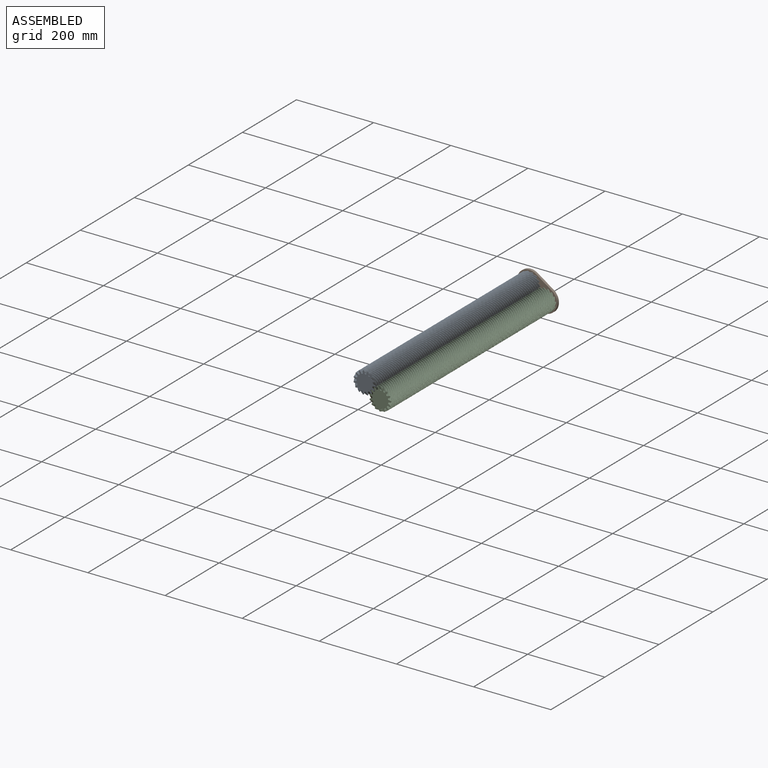
[diagram: assembled view]
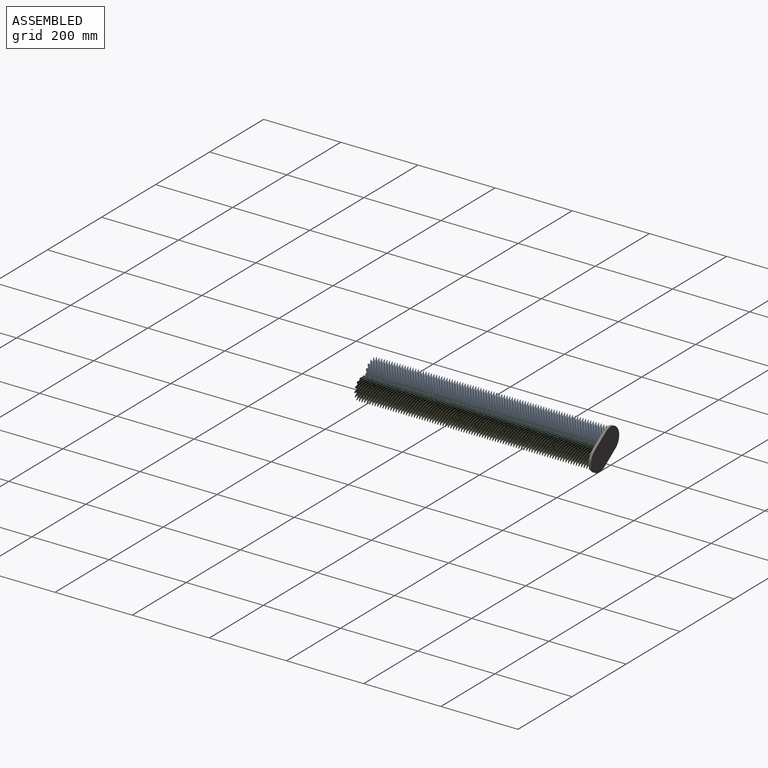
[diagram: assembled view, second angle]
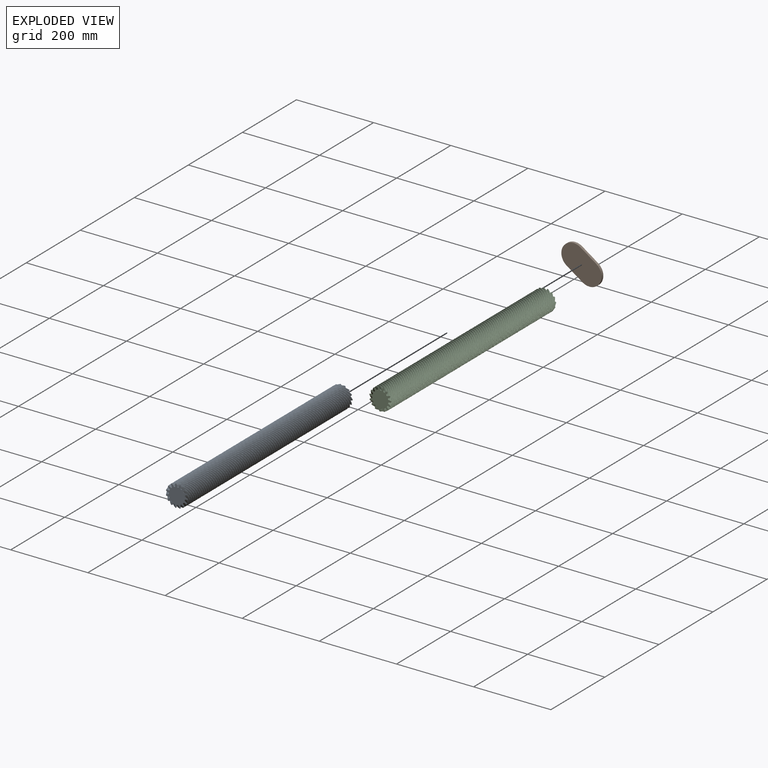
[diagram: exploded view]
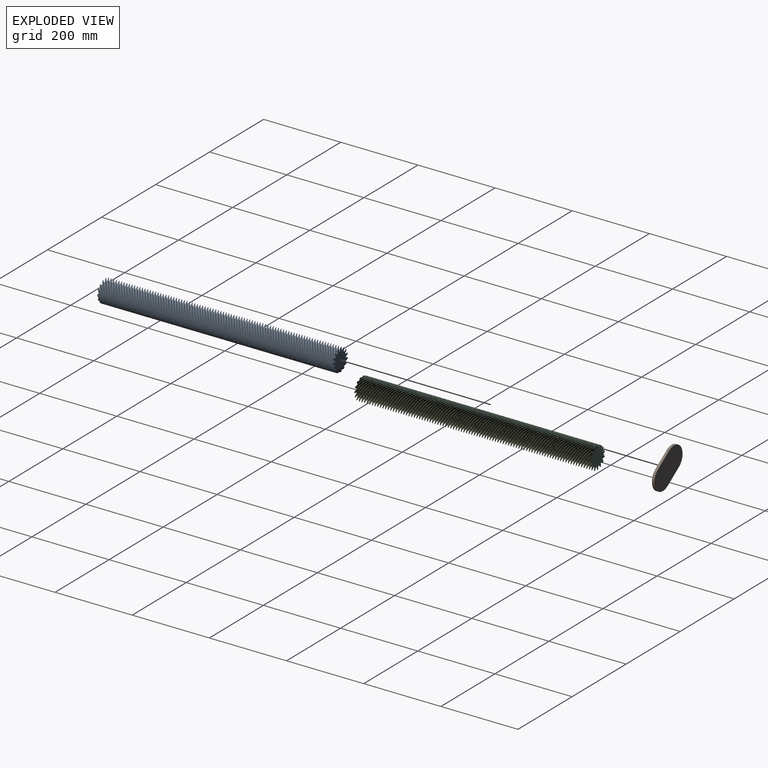
[diagram: exploded view, second angle]
ASSEMBLY  parts=3 mates=2
PART A: 137 faces, bbox 59.4x615x59.4 mm
  f0: bspline ~614.19x44.65mm, area 2408.2mm2, adj f2,f3,f5,f11
  f1: bspline ~614.16x44.67mm, area 2408.2mm2, adj f2,f3,f4,f12
  f2: plane 58.08x57.82mm, normal (0,-1,0), area 1895.9mm2, adj f0,f1,f4,f5,f6,f7,f8,f9
  f3: plane 58.08x57.82mm, normal (0,1,0), area 1895.9mm2, adj f0,f1,f4,f5,f6,f7,f8,f9
  f4: bspline ~609.6x49.19mm, area 1941.8mm2, adj f1,f2,f3,f10
  f5: bspline ~609.6x48.39mm, area 1941.8mm2, adj f0,f2,f3,f6
  f6: bspline ~609.6x54.69mm, area 3443.7mm2, adj f2,f3,f5,f7
  f7: bspline ~609.6x58.38mm, area 2160.4mm2, adj f2,f3,f6,f8
  f8: bspline ~609.6x58.65mm, area 1075.6mm2, adj f2,f3,f7,f9
  f9: bspline ~609.6x58.65mm, area 2160.4mm2, adj f2,f3,f8,f10
  f10: bspline ~609.6x55.24mm, area 3443.7mm2, adj f2,f3,f4,f9
  f11: bspline ~614.16x44.67mm, area 2408.2mm2, adj f0,f2,f3,f130
  f12: bspline ~614.19x44.67mm, area 2408.2mm2, adj f1,f2,f3,f15
  f13: bspline ~614.16x44.67mm, area 2408.2mm2, adj f2,f3,f14,f21
  f14: bspline ~609.6x49.13mm, area 1941.8mm2, adj f2,f3,f13,f20
  f15: bspline ~609.6x48.61mm, area 1941.8mm2, adj f2,f3,f12,f16
  f16: bspline ~609.6x54.88mm, area 3443.7mm2, adj f2,f3,f15,f17
  f17: bspline ~609.6x58.52mm, area 2160.4mm2, adj f2,f3,f16,f18
  f18: bspline ~609.6x58.69mm, area 1075.6mm2, adj f2,f3,f17,f19
  f19: bspline ~609.6x58.69mm, area 2160.4mm2, adj f2,f3,f18,f20
  f20: bspline ~609.6x55.23mm, area 3443.7mm2, adj f2,f3,f14,f19
  f21: bspline ~614.19x44.67mm, area 2408.2mm2, adj f2,f3,f13,f24
  f22: bspline ~614.16x44.67mm, area 2408.2mm2, adj f2,f3,f23,f30
  f23: bspline ~609.6x49.03mm, area 1941.8mm2, adj f2,f3,f22,f29
  f24: bspline ~609.6x48.8mm, area 1941.8mm2, adj f2,f3,f21,f25
  f25: bspline ~609.6x55.02mm, area 3443.7mm2, adj f2,f3,f24,f26
  f26: bspline ~609.6x58.62mm, area 2160.4mm2, adj f2,f3,f25,f27
  f27: bspline ~609.6x58.71mm, area 1075.6mm2, adj f2,f3,f26,f28
  f28: bspline ~609.6x58.7mm, area 2160.4mm2, adj f2,f3,f27,f29
  f29: bspline ~609.6x55.18mm, area 3443.7mm2, adj f2,f3,f23,f28
  f30: bspline ~614.19x44.67mm, area 2408.3mm2, adj f2,f3,f22,f33
  f31: bspline ~614.16x44.67mm, area 2408.2mm2, adj f2,f3,f32,f39
  f32: bspline ~609.6x48.9mm, area 1941.8mm2, adj f2,f3,f31,f38
  f33: bspline ~609.6x48.95mm, area 1941.8mm2, adj f2,f3,f30,f34
  f34: bspline ~609.6x55.13mm, area 3443.7mm2, adj f2,f3,f33,f35
  f35: bspline ~609.6x58.68mm, area 2160.4mm2, adj f2,f3,f34,f36
  f36: bspline ~609.6x58.71mm, area 1075.6mm2, adj f2,f3,f35,f37
  f37: bspline ~609.6x58.67mm, area 2160.4mm2, adj f2,f3,f36,f38
  f38: bspline ~609.6x55.1mm, area 3443.7mm2, adj f2,f3,f32,f37
  f39: bspline ~614.19x44.67mm, area 2408.2mm2, adj f2,f3,f31,f42
  f40: bspline ~614.16x44.67mm, area 2408.2mm2, adj f2,f3,f41,f48
  f41: bspline ~609.6x48.73mm, area 1941.8mm2, adj f2,f3,f40,f47
  f42: bspline ~609.6x49.07mm, area 1941.8mm2, adj f2,f3,f39,f43
  f43: bspline ~609.6x55.2mm, area 3443.7mm2, adj f2,f3,f42,f44
  f44: bspline ~609.6x58.7mm, area 2160.4mm2, adj f2,f3,f43,f45
  f45: bspline ~609.6x58.7mm, area 1075.6mm2, adj f2,f3,f44,f46
  f46: bspline ~609.6x58.59mm, area 2160.4mm2, adj f2,f3,f45,f47
  f47: bspline ~609.6x54.97mm, area 3443.7mm2, adj f2,f3,f41,f46
  f48: bspline ~614.19x44.67mm, area 2408.2mm2, adj f2,f3,f40,f51
  f49: bspline ~614.16x44.66mm, area 2408.2mm2, adj f2,f3,f50,f57
  f50: bspline ~609.6x48.53mm, area 1941.8mm2, adj f2,f3,f49,f56
  f51: bspline ~609.6x49.16mm, area 1941.8mm2, adj f2,f3,f48,f52
  f52: bspline ~609.6x55.24mm, area 3443.7mm2, adj f2,f3,f51,f53
  f53: bspline ~609.6x58.68mm, area 2160.4mm2, adj f2,f3,f52,f54
  f54: bspline ~609.6x58.68mm, area 1075.6mm2, adj f2,f3,f53,f55
  f55: bspline ~609.6x58.48mm, area 2160.4mm2, adj f2,f3,f54,f56
  f56: bspline ~609.6x54.81mm, area 3443.7mm2, adj f2,f3,f50,f55
  f57: bspline ~614.19x44.67mm, area 2408.3mm2, adj f2,f3,f49,f60
  f58: bspline ~614.16x44.65mm, area 2408.2mm2, adj f2,f3,f59,f66
  f59: bspline ~609.6x48.3mm, area 1941.8mm2, adj f2,f3,f58,f65
  f60: bspline ~609.6x49.21mm, area 1941.8mm2, adj f2,f3,f57,f61
  f61: bspline ~609.6x55.23mm, area 3443.7mm2, adj f2,f3,f60,f62
  f62: bspline ~609.6x58.62mm, area 2160.4mm2, adj f2,f3,f61,f63
  f63: bspline ~609.6x58.62mm, area 1075.6mm2, adj f2,f3,f62,f64
  f64: bspline ~609.6x58.32mm, area 2160.4mm2, adj f2,f3,f63,f65
  f65: bspline ~609.6x54.61mm, area 3443.7mm2, adj f2,f3,f59,f64
  f66: bspline ~614.19x44.67mm, area 2408.3mm2, adj f2,f3,f58,f69
  f67: bspline ~614.16x44.66mm, area 2408.2mm2, adj f2,f3,f68,f75
  f68: bspline ~609.6x48.49mm, area 1941.8mm2, adj f2,f3,f67,f74
  f69: bspline ~609.6x49.22mm, area 1941.8mm2, adj f2,f3,f66,f70
  f70: bspline ~609.6x55.19mm, area 3443.7mm2, adj f2,f3,f69,f71
  f71: bspline ~609.6x58.52mm, area 2160.4mm2, adj f2,f3,f70,f72
  f72: bspline ~609.6x58.52mm, area 1075.6mm2, adj f2,f3,f71,f73
  f73: bspline ~609.6x58.13mm, area 2160.4mm2, adj f2,f3,f72,f74
  f74: bspline ~609.6x54.38mm, area 3443.7mm2, adj f2,f3,f68,f73
  f75: bspline ~614.19x44.67mm, area 2408.3mm2, adj f2,f3,f67,f78
  f76: bspline ~614.16x44.67mm, area 2408.2mm2, adj f2,f3,f77,f84
  f77: bspline ~609.6x48.7mm, area 1941.8mm2, adj f2,f3,f76,f83
  f78: bspline ~609.6x49.21mm, area 1941.8mm2, adj f2,f3,f75,f79
  f79: bspline ~609.6x55.11mm, area 3443.7mm2, adj f2,f3,f78,f80
  f80: bspline ~609.6x58.38mm, area 2160.4mm2, adj f2,f3,f79,f81
  f81: bspline ~609.6x58.38mm, area 1075.6mm2, adj f2,f3,f80,f82
  f82: bspline ~609.6x57.89mm, area 2160.4mm2, adj f2,f3,f81,f83
  f83: bspline ~609.6x54.25mm, area 3443.7mm2, adj f2,f3,f77,f82
  f84: bspline ~614.19x44.67mm, area 2408.3mm2, adj f2,f3,f76,f87
  f85: bspline ~614.16x44.67mm, area 2408.2mm2, adj f2,f3,f86,f93
  f86: bspline ~609.6x48.87mm, area 1941.8mm2, adj f2,f3,f85,f92
  f87: bspline ~609.6x49.16mm, area 1941.8mm2, adj f2,f3,f84,f88
  f88: bspline ~609.6x54.99mm, area 3443.7mm2, adj f2,f3,f87,f89
  f89: bspline ~609.6x58.2mm, area 2160.4mm2, adj f2,f3,f88,f90
  f90: bspline ~609.6x58.2mm, area 1075.6mm2, adj f2,f3,f89,f91
  f91: bspline ~609.6x57.62mm, area 2160.4mm2, adj f2,f3,f90,f92
  f92: bspline ~609.6x54.5mm, area 3443.7mm2, adj f2,f3,f86,f91
  f93: bspline ~614.19x44.67mm, area 2408.3mm2, adj f2,f3,f85,f96
  f94: bspline ~614.16x44.67mm, area 2408.2mm2, adj f2,f3,f95,f102
  f95: bspline ~609.6x49.01mm, area 1941.8mm2, adj f2,f3,f94,f101
  f96: bspline ~609.6x49.08mm, area 1941.8mm2, adj f2,f3,f93,f97
  f97: bspline ~609.6x54.84mm, area 3443.7mm2, adj f2,f3,f96,f98
  f98: bspline ~609.6x57.97mm, area 2160.4mm2, adj f2,f3,f97,f99
  f99: bspline ~609.6x57.97mm, area 1075.6mm2, adj f2,f3,f98,f100
  f100: bspline ~609.6x57.82mm, area 2160.4mm2, adj f2,f3,f99,f101
  f101: bspline ~609.6x54.72mm, area 3443.7mm2, adj f2,f3,f95,f100
  f102: bspline ~614.19x44.67mm, area 2408.3mm2, adj f2,f3,f94,f105
  f103: bspline ~614.16x44.67mm, area 2408.2mm2, adj f2,f3,f104,f111
  f104: bspline ~609.6x49.11mm, area 1941.8mm2, adj f2,f3,f103,f110
  f105: bspline ~609.6x48.96mm, area 1941.8mm2, adj f2,f3,f102,f106
  f106: bspline ~609.6x54.64mm, area 3443.7mm2, adj f2,f3,f105,f107
  f107: bspline ~609.6x57.71mm, area 2160.4mm2, adj f2,f3,f106,f108
  f108: bspline ~609.6x58.06mm, area 1075.6mm2, adj f2,f3,f107,f109
  f109: bspline ~609.6x58.06mm, area 2160.4mm2, adj f2,f3,f108,f110
  f110: bspline ~609.6x54.9mm, area 3443.7mm2, adj f2,f3,f104,f109
  f111: bspline ~614.19x44.67mm, area 2408.3mm2, adj f2,f3,f103,f114
  f112: bspline ~614.16x44.67mm, area 2408.2mm2, adj f2,f3,f113,f120
  f113: bspline ~609.6x49.18mm, area 1941.8mm2, adj f2,f3,f112,f119
  f114: bspline ~609.6x48.81mm, area 1941.8mm2, adj f2,f3,f111,f115
  f115: bspline ~609.6x54.41mm, area 3443.7mm2, adj f2,f3,f114,f116
  f116: bspline ~609.6x57.73mm, area 2160.4mm2, adj f2,f3,f115,f117
  f117: bspline ~609.6x58.27mm, area 1075.6mm2, adj f2,f3,f116,f118
  f118: bspline ~609.6x58.27mm, area 2160.4mm2, adj f2,f3,f117,f119
  f119: bspline ~609.6x55.04mm, area 3443.7mm2, adj f2,f3,f113,f118
  f120: bspline ~614.19x44.67mm, area 2408.3mm2, adj f2,f3,f112,f123
  f121: bspline ~614.16x44.67mm, area 2408.2mm2, adj f2,f3,f122,f129
  f122: bspline ~609.6x49.22mm, area 1941.8mm2, adj f2,f3,f121,f128
  f123: bspline ~609.6x48.62mm, area 1941.8mm2, adj f2,f3,f120,f124
  f124: bspline ~609.6x54.21mm, area 3443.7mm2, adj f2,f3,f123,f125
  f125: bspline ~609.6x57.98mm, area 2160.4mm2, adj f2,f3,f124,f126
  f126: bspline ~609.6x58.44mm, area 1075.6mm2, adj f2,f3,f125,f127
  f127: bspline ~609.6x58.44mm, area 2160.4mm2, adj f2,f3,f126,f128
  f128: bspline ~609.6x55.14mm, area 3443.7mm2, adj f2,f3,f122,f127
  f129: bspline ~614.19x44.66mm, area 2408.2mm2, adj f2,f3,f121,f131
  f130: bspline ~609.6x49.22mm, area 1941.8mm2, adj f2,f3,f11,f136
  f131: bspline ~609.6x48.41mm, area 1941.8mm2, adj f2,f3,f129,f132
  f132: bspline ~609.6x54.47mm, area 3443.7mm2, adj f2,f3,f131,f133
  f133: bspline ~609.6x58.2mm, area 2160.4mm2, adj f2,f3,f132,f134
  f134: bspline ~609.6x58.56mm, area 1075.6mm2, adj f2,f3,f133,f135
  f135: bspline ~609.6x58.56mm, area 2160.4mm2, adj f2,f3,f134,f136
  f136: bspline ~609.6x55.21mm, area 3443.7mm2, adj f2,f3,f130,f135
PART B: 6 faces, bbox 113x6.4x63.5 mm
  f0: cylinder r=31.75mm len=63.5mm, axis (0,1,0), area 633.4mm2, adj f1,f3,f4,f5
  f1: plane 49.53x6.35mm, normal (0,0,-1), area 314.5mm2, adj f0,f2,f4,f5
  f2: cylinder r=31.75mm len=63.5mm, axis (0,1,0), area 633.4mm2, adj f1,f3,f4,f5
  f3: plane 49.53x6.35mm, normal (0,0,1), area 314.5mm2, adj f0,f2,f4,f5
  f4: plane 113.03x63.5mm, normal (0,-1,0), area 6312.1mm2, adj f0,f1,f2,f3
  f5: plane 113.03x63.5mm, normal (0,1,0), area 6312.1mm2, adj f0,f1,f2,f3
PART C: 137 faces, bbox 59.4x615x59.4 mm
  f0: bspline ~614.19x44.65mm, area 2408.4mm2, adj f2,f3,f5,f11
  f1: bspline ~614.16x44.67mm, area 2408.2mm2, adj f2,f3,f4,f12
  f2: plane 58.08x57.82mm, normal (0,1,0), area 1895.9mm2, adj f0,f1,f4,f5,f6,f7,f8,f9
  f3: plane 58.08x57.82mm, normal (0,-1,0), area 1895.9mm2, adj f0,f1,f4,f5,f6,f7,f8,f9
  f4: bspline ~609.6x49.19mm, area 1941.8mm2, adj f1,f2,f3,f10
  f5: bspline ~609.6x48.39mm, area 1941.8mm2, adj f0,f2,f3,f6
  f6: bspline ~609.6x54.69mm, area 3443.7mm2, adj f2,f3,f5,f7
  f7: bspline ~609.6x58.38mm, area 2160.4mm2, adj f2,f3,f6,f8
  f8: bspline ~609.6x58.65mm, area 1075.6mm2, adj f2,f3,f7,f9
  f9: bspline ~609.6x58.65mm, area 2160.4mm2, adj f2,f3,f8,f10
  f10: bspline ~609.6x55.24mm, area 3443.7mm2, adj f2,f3,f4,f9
  f11: bspline ~614.16x44.67mm, area 2408.2mm2, adj f0,f2,f3,f130
  f12: bspline ~614.19x44.67mm, area 2408.4mm2, adj f1,f2,f3,f15
  f13: bspline ~614.16x44.67mm, area 2408.2mm2, adj f2,f3,f14,f21
  f14: bspline ~609.6x49.13mm, area 1941.8mm2, adj f2,f3,f13,f20
  f15: bspline ~609.6x48.61mm, area 1941.8mm2, adj f2,f3,f12,f16
  f16: bspline ~609.6x54.88mm, area 3443.7mm2, adj f2,f3,f15,f17
  f17: bspline ~609.6x58.52mm, area 2160.4mm2, adj f2,f3,f16,f18
  f18: bspline ~609.6x58.69mm, area 1075.6mm2, adj f2,f3,f17,f19
  f19: bspline ~609.6x58.69mm, area 2160.4mm2, adj f2,f3,f18,f20
  f20: bspline ~609.6x55.23mm, area 3443.7mm2, adj f2,f3,f14,f19
  f21: bspline ~614.19x44.67mm, area 2408.4mm2, adj f2,f3,f13,f24
  f22: bspline ~614.16x44.67mm, area 2408.2mm2, adj f2,f3,f23,f30
  f23: bspline ~609.6x49.03mm, area 1941.8mm2, adj f2,f3,f22,f29
  f24: bspline ~609.6x48.8mm, area 1941.8mm2, adj f2,f3,f21,f25
  f25: bspline ~609.6x55.02mm, area 3443.7mm2, adj f2,f3,f24,f26
  f26: bspline ~609.6x58.62mm, area 2160.4mm2, adj f2,f3,f25,f27
  f27: bspline ~609.6x58.71mm, area 1075.6mm2, adj f2,f3,f26,f28
  f28: bspline ~609.6x58.7mm, area 2160.4mm2, adj f2,f3,f27,f29
  f29: bspline ~609.6x55.18mm, area 3443.7mm2, adj f2,f3,f23,f28
  f30: bspline ~614.19x44.67mm, area 2408.4mm2, adj f2,f3,f22,f33
  f31: bspline ~614.16x44.67mm, area 2408.2mm2, adj f2,f3,f32,f39
  f32: bspline ~609.6x48.9mm, area 1941.8mm2, adj f2,f3,f31,f38
  f33: bspline ~609.6x48.95mm, area 1941.8mm2, adj f2,f3,f30,f34
  f34: bspline ~609.6x55.13mm, area 3443.7mm2, adj f2,f3,f33,f35
  f35: bspline ~609.6x58.68mm, area 2160.4mm2, adj f2,f3,f34,f36
  f36: bspline ~609.6x58.71mm, area 1075.6mm2, adj f2,f3,f35,f37
  f37: bspline ~609.6x58.67mm, area 2160.4mm2, adj f2,f3,f36,f38
  f38: bspline ~609.6x55.1mm, area 3443.7mm2, adj f2,f3,f32,f37
  f39: bspline ~614.19x44.67mm, area 2408.4mm2, adj f2,f3,f31,f42
  f40: bspline ~614.16x44.67mm, area 2408.2mm2, adj f2,f3,f41,f48
  f41: bspline ~609.6x48.73mm, area 1941.8mm2, adj f2,f3,f40,f47
  f42: bspline ~609.6x49.07mm, area 1941.8mm2, adj f2,f3,f39,f43
  f43: bspline ~609.6x55.2mm, area 3443.7mm2, adj f2,f3,f42,f44
  f44: bspline ~609.6x58.7mm, area 2160.4mm2, adj f2,f3,f43,f45
  f45: bspline ~609.6x58.7mm, area 1075.6mm2, adj f2,f3,f44,f46
  f46: bspline ~609.6x58.59mm, area 2160.4mm2, adj f2,f3,f45,f47
  f47: bspline ~609.6x54.97mm, area 3443.7mm2, adj f2,f3,f41,f46
  f48: bspline ~614.19x44.67mm, area 2408.4mm2, adj f2,f3,f40,f51
  f49: bspline ~614.16x44.66mm, area 2408.2mm2, adj f2,f3,f50,f57
  f50: bspline ~609.6x48.53mm, area 1941.8mm2, adj f2,f3,f49,f56
  f51: bspline ~609.6x49.16mm, area 1941.8mm2, adj f2,f3,f48,f52
  f52: bspline ~609.6x55.24mm, area 3443.7mm2, adj f2,f3,f51,f53
  f53: bspline ~609.6x58.68mm, area 2160.4mm2, adj f2,f3,f52,f54
  f54: bspline ~609.6x58.68mm, area 1075.6mm2, adj f2,f3,f53,f55
  f55: bspline ~609.6x58.48mm, area 2160.4mm2, adj f2,f3,f54,f56
  f56: bspline ~609.6x54.81mm, area 3443.7mm2, adj f2,f3,f50,f55
  f57: bspline ~614.19x44.67mm, area 2408.4mm2, adj f2,f3,f49,f60
  f58: bspline ~614.16x44.65mm, area 2408.2mm2, adj f2,f3,f59,f66
  f59: bspline ~609.6x48.3mm, area 1941.8mm2, adj f2,f3,f58,f65
  f60: bspline ~609.6x49.21mm, area 1941.8mm2, adj f2,f3,f57,f61
  f61: bspline ~609.6x55.23mm, area 3443.7mm2, adj f2,f3,f60,f62
  f62: bspline ~609.6x58.62mm, area 2160.4mm2, adj f2,f3,f61,f63
  f63: bspline ~609.6x58.62mm, area 1075.6mm2, adj f2,f3,f62,f64
  f64: bspline ~609.6x58.32mm, area 2160.4mm2, adj f2,f3,f63,f65
  f65: bspline ~609.6x54.61mm, area 3443.7mm2, adj f2,f3,f59,f64
  f66: bspline ~614.19x44.67mm, area 2408.4mm2, adj f2,f3,f58,f69
  f67: bspline ~614.16x44.66mm, area 2408.2mm2, adj f2,f3,f68,f75
  f68: bspline ~609.6x48.49mm, area 1941.8mm2, adj f2,f3,f67,f74
  f69: bspline ~609.6x49.22mm, area 1941.8mm2, adj f2,f3,f66,f70
  f70: bspline ~609.6x55.19mm, area 3443.7mm2, adj f2,f3,f69,f71
  f71: bspline ~609.6x58.52mm, area 2160.4mm2, adj f2,f3,f70,f72
  f72: bspline ~609.6x58.52mm, area 1075.6mm2, adj f2,f3,f71,f73
  f73: bspline ~609.6x58.13mm, area 2160.4mm2, adj f2,f3,f72,f74
  f74: bspline ~609.6x54.38mm, area 3443.7mm2, adj f2,f3,f68,f73
  f75: bspline ~614.19x44.67mm, area 2408.4mm2, adj f2,f3,f67,f78
  f76: bspline ~614.16x44.67mm, area 2408.2mm2, adj f2,f3,f77,f84
  f77: bspline ~609.6x48.7mm, area 1941.8mm2, adj f2,f3,f76,f83
  f78: bspline ~609.6x49.21mm, area 1941.8mm2, adj f2,f3,f75,f79
  f79: bspline ~609.6x55.11mm, area 3443.7mm2, adj f2,f3,f78,f80
  f80: bspline ~609.6x58.38mm, area 2160.4mm2, adj f2,f3,f79,f81
  f81: bspline ~609.6x58.38mm, area 1075.6mm2, adj f2,f3,f80,f82
  f82: bspline ~609.6x57.89mm, area 2160.4mm2, adj f2,f3,f81,f83
  f83: bspline ~609.6x54.25mm, area 3443.7mm2, adj f2,f3,f77,f82
  f84: bspline ~614.19x44.67mm, area 2408.4mm2, adj f2,f3,f76,f87
  f85: bspline ~614.16x44.67mm, area 2408.2mm2, adj f2,f3,f86,f93
  f86: bspline ~609.6x48.87mm, area 1941.8mm2, adj f2,f3,f85,f92
  f87: bspline ~609.6x49.16mm, area 1941.8mm2, adj f2,f3,f84,f88
  f88: bspline ~609.6x54.99mm, area 3443.7mm2, adj f2,f3,f87,f89
  f89: bspline ~609.6x58.2mm, area 2160.4mm2, adj f2,f3,f88,f90
  f90: bspline ~609.6x58.2mm, area 1075.6mm2, adj f2,f3,f89,f91
  f91: bspline ~609.6x57.62mm, area 2160.4mm2, adj f2,f3,f90,f92
  f92: bspline ~609.6x54.5mm, area 3443.7mm2, adj f2,f3,f86,f91
  f93: bspline ~614.19x44.67mm, area 2408.4mm2, adj f2,f3,f85,f96
  f94: bspline ~614.16x44.67mm, area 2408.2mm2, adj f2,f3,f95,f102
  f95: bspline ~609.6x49.01mm, area 1941.8mm2, adj f2,f3,f94,f101
  f96: bspline ~609.6x49.08mm, area 1941.8mm2, adj f2,f3,f93,f97
  f97: bspline ~609.6x54.84mm, area 3443.7mm2, adj f2,f3,f96,f98
  f98: bspline ~609.6x57.97mm, area 2160.4mm2, adj f2,f3,f97,f99
  f99: bspline ~609.6x57.97mm, area 1075.6mm2, adj f2,f3,f98,f100
  f100: bspline ~609.6x57.82mm, area 2160.4mm2, adj f2,f3,f99,f101
  f101: bspline ~609.6x54.72mm, area 3443.7mm2, adj f2,f3,f95,f100
  f102: bspline ~614.19x44.67mm, area 2408.4mm2, adj f2,f3,f94,f105
  f103: bspline ~614.16x44.67mm, area 2408.2mm2, adj f2,f3,f104,f111
  f104: bspline ~609.6x49.11mm, area 1941.8mm2, adj f2,f3,f103,f110
  f105: bspline ~609.6x48.96mm, area 1941.8mm2, adj f2,f3,f102,f106
  f106: bspline ~609.6x54.64mm, area 3443.7mm2, adj f2,f3,f105,f107
  f107: bspline ~609.6x57.71mm, area 2160.4mm2, adj f2,f3,f106,f108
  f108: bspline ~609.6x58.06mm, area 1075.6mm2, adj f2,f3,f107,f109
  f109: bspline ~609.6x58.06mm, area 2160.4mm2, adj f2,f3,f108,f110
  f110: bspline ~609.6x54.9mm, area 3443.7mm2, adj f2,f3,f104,f109
  f111: bspline ~614.19x44.67mm, area 2408.4mm2, adj f2,f3,f103,f114
  f112: bspline ~614.16x44.67mm, area 2408.2mm2, adj f2,f3,f113,f120
  f113: bspline ~609.6x49.18mm, area 1941.8mm2, adj f2,f3,f112,f119
  f114: bspline ~609.6x48.81mm, area 1941.8mm2, adj f2,f3,f111,f115
  f115: bspline ~609.6x54.41mm, area 3443.7mm2, adj f2,f3,f114,f116
  f116: bspline ~609.6x57.73mm, area 2160.4mm2, adj f2,f3,f115,f117
  f117: bspline ~609.6x58.27mm, area 1075.6mm2, adj f2,f3,f116,f118
  f118: bspline ~609.6x58.27mm, area 2160.4mm2, adj f2,f3,f117,f119
  f119: bspline ~609.6x55.04mm, area 3443.7mm2, adj f2,f3,f113,f118
  f120: bspline ~614.19x44.67mm, area 2408.4mm2, adj f2,f3,f112,f123
  f121: bspline ~614.16x44.67mm, area 2408.2mm2, adj f2,f3,f122,f129
  f122: bspline ~609.6x49.22mm, area 1941.8mm2, adj f2,f3,f121,f128
  f123: bspline ~609.6x48.62mm, area 1941.8mm2, adj f2,f3,f120,f124
  f124: bspline ~609.6x54.21mm, area 3443.7mm2, adj f2,f3,f123,f125
  f125: bspline ~609.6x57.98mm, area 2160.4mm2, adj f2,f3,f124,f126
  f126: bspline ~609.6x58.44mm, area 1075.6mm2, adj f2,f3,f125,f127
  f127: bspline ~609.6x58.44mm, area 2160.4mm2, adj f2,f3,f126,f128
  f128: bspline ~609.6x55.14mm, area 3443.7mm2, adj f2,f3,f122,f127
  f129: bspline ~614.19x44.66mm, area 2408.4mm2, adj f2,f3,f121,f131
  f130: bspline ~609.6x49.22mm, area 1941.8mm2, adj f2,f3,f11,f136
  f131: bspline ~609.6x48.41mm, area 1941.8mm2, adj f2,f3,f129,f132
  f132: bspline ~609.6x54.47mm, area 3443.7mm2, adj f2,f3,f131,f133
  f133: bspline ~609.6x58.2mm, area 2160.4mm2, adj f2,f3,f132,f134
  f134: bspline ~609.6x58.56mm, area 1075.6mm2, adj f2,f3,f133,f135
  f135: bspline ~609.6x58.56mm, area 2160.4mm2, adj f2,f3,f134,f136
  f136: bspline ~609.6x55.21mm, area 3443.7mm2, adj f2,f3,f130,f135
PLACE A rot(axis=(0,-1,0),120.1deg) t=(18.93,606.76,-57.06)mm
PLACE B rot(axis=(0,1,0),34.4deg) t=(39.38,613.11,-71.03)mm fixed
PLACE C rot(axis=(0,-1,0),171.2deg) t=(59.82,-2.84,-85)mm
MATE revolute B.f2 <-> C.f2  axis (0,-1,0) through (59.82,606.76,-85)mm
MATE revolute B.f0 <-> A.f3  axis (0,-1,0) through (18.93,606.76,-57.06)mm
